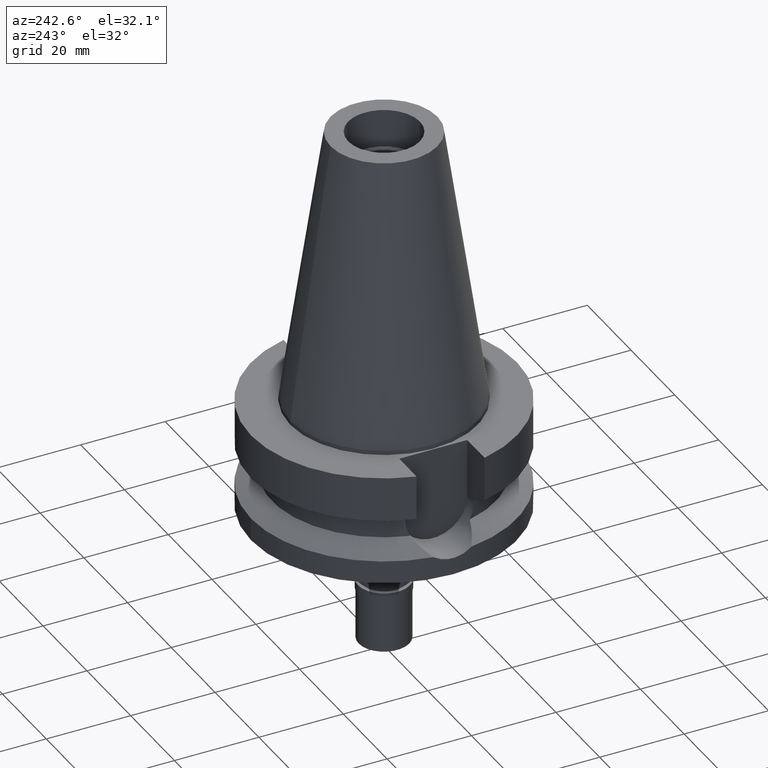
[diagram: clean part render]
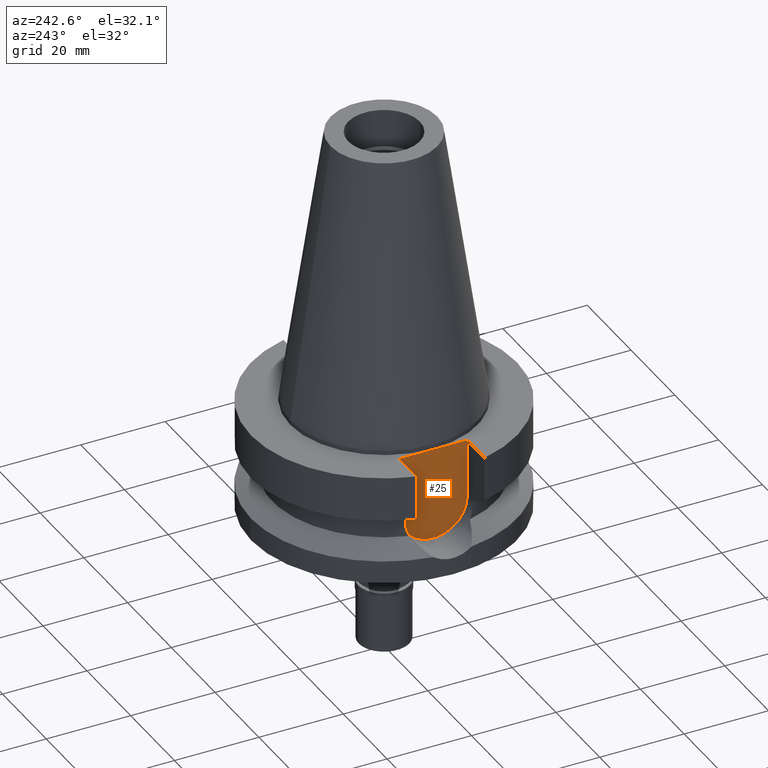
[diagram: same view with one face highlighted and labeled with its STEP entity id]
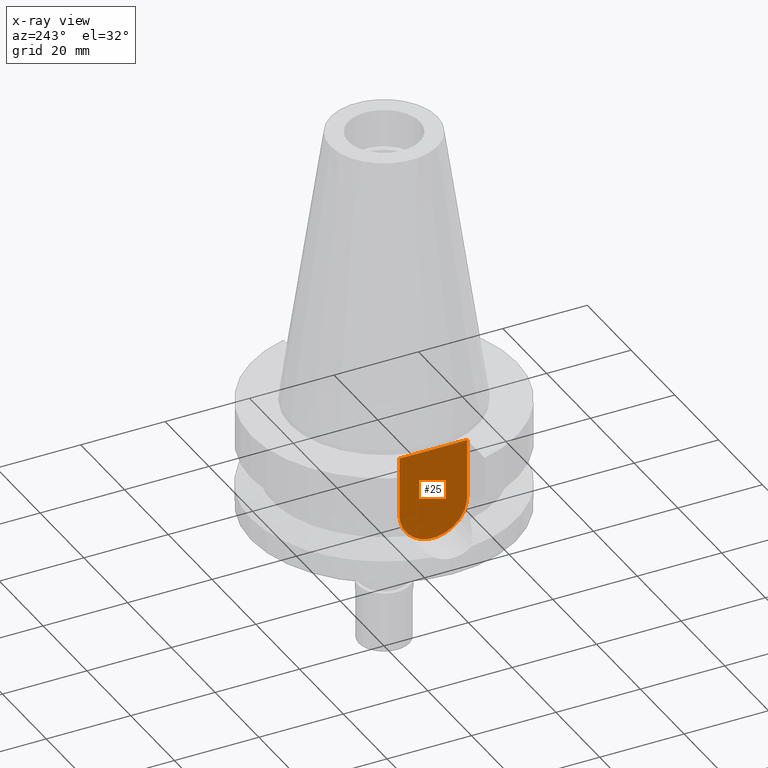
[diagram: x-ray of the same camera — body ghosted, the highlighted face saturated]
A machine part, auxiliary view. The second image highlights one B-rep face of the part: STEP entity #25.
The next image is the same camera in x-ray: the body ghosted, the highlighted face saturated — about 0% of this face is hidden behind the body in this view.
In plain terms, the highlighted planar face has unit normal (-1, 0, 0).
Its self-contained STEP definition (entity closure, byte-faithful):
#25 = ADVANCED_FACE ( 'NONE', ( #638 ), #435, .T. ) ;
#100 = DIRECTION ( 'NONE',  ( 0.0000000000000000000, 1.000000000000000000, 0.0000000000000000000 ) ) ;
#115 = CARTESIAN_POINT ( 'NONE',  ( -22.50000000000000000, 8.050000000000000711, -14.94999999999999929 ) ) ;
#158 = EDGE_CURVE ( 'NONE', #1164, #1491, #1894, .T. ) ;
#335 = ORIENTED_EDGE ( 'NONE', *, *, #1942, .T. ) ;
#343 = VECTOR ( 'NONE', #100, 1000.000000000000000 ) ;
#401 = DIRECTION ( 'NONE',  ( 1.000000000000000000, 0.0000000000000000000, 0.0000000000000000000 ) ) ;
#435 = PLANE ( 'NONE',  #2677 ) ;
#590 = EDGE_CURVE ( 'NONE', #1628, #1164, #1476, .T. ) ;
#638 = FACE_OUTER_BOUND ( 'NONE', #1702, .T. ) ;
#664 = CARTESIAN_POINT ( 'NONE',  ( -22.50000000000000000, 1.807578675540999863E-14, -14.94999999999999929 ) ) ;
#694 = LINE ( 'NONE', #1488, #343 ) ;
#734 = CARTESIAN_POINT ( 'NONE',  ( -22.50000000000000000, 8.050000000000000711, -14.94999999999999929 ) ) ;
#902 = DIRECTION ( 'NONE',  ( 0.0000000000000000000, 0.0000000000000000000, -1.000000000000000000 ) ) ;
#904 = CARTESIAN_POINT ( 'NONE',  ( -22.50000000000000000, 2.173748068486999793E-14, 0.0000000000000000000 ) ) ;
#1056 = ORIENTED_EDGE ( 'NONE', *, *, #158, .F. ) ;
#1093 = EDGE_CURVE ( 'NONE', #2637, #1628, #1132, .T. ) ;
#1132 = LINE ( 'NONE', #2047, #2172 ) ;
#1148 = DIRECTION ( 'NONE',  ( 0.0000000000000000000, 0.0000000000000000000, 1.000000000000000000 ) ) ;
#1164 = VERTEX_POINT ( 'NONE', #115 ) ;
#1436 = ORIENTED_EDGE ( 'NONE', *, *, #1093, .F. ) ;
#1476 = CIRCLE ( 'NONE', #2446, 8.050000000000000711 ) ;
#1488 = CARTESIAN_POINT ( 'NONE',  ( -22.50000000000000000, -8.050000000000000711, -1.000000000000000000 ) ) ;
#1491 = VERTEX_POINT ( 'NONE', #2442 ) ;
#1578 = CARTESIAN_POINT ( 'NONE',  ( -22.50000000000000000, -8.050000000000000711, -14.94999999999999929 ) ) ;
#1628 = VERTEX_POINT ( 'NONE', #1578 ) ;
#1702 = EDGE_LOOP ( 'NONE', ( #1056, #2273, #1436, #335 ) ) ;
#1808 = DIRECTION ( 'NONE',  ( -1.000000000000000000, 0.0000000000000000000, 0.0000000000000000000 ) ) ;
#1894 = LINE ( 'NONE', #734, #2163 ) ;
#1942 = EDGE_CURVE ( 'NONE', #2637, #1491, #694, .T. ) ;
#2047 = CARTESIAN_POINT ( 'NONE',  ( -22.50000000000000000, -8.050000000000000711, -1.000000000000000000 ) ) ;
#2118 = DIRECTION ( 'NONE',  ( 0.0000000000000000000, 0.0000000000000000000, 1.000000000000000000 ) ) ;
#2163 = VECTOR ( 'NONE', #2118, 1000.000000000000000 ) ;
#2172 = VECTOR ( 'NONE', #902, 1000.000000000000000 ) ;
#2247 = DIRECTION ( 'NONE',  ( 0.0000000000000000000, 0.0000000000000000000, -1.000000000000000000 ) ) ;
#2273 = ORIENTED_EDGE ( 'NONE', *, *, #590, .F. ) ;
#2442 = CARTESIAN_POINT ( 'NONE',  ( -22.50000000000000000, 8.050000000000000711, -1.000000000000000000 ) ) ;
#2446 = AXIS2_PLACEMENT_3D ( 'NONE', #664, #401, #2247 ) ;
#2525 = CARTESIAN_POINT ( 'NONE',  ( -22.50000000000000000, -8.050000000000000711, -1.000000000000000000 ) ) ;
#2637 = VERTEX_POINT ( 'NONE', #2525 ) ;
#2677 = AXIS2_PLACEMENT_3D ( 'NONE', #904, #1808, #1148 ) ;